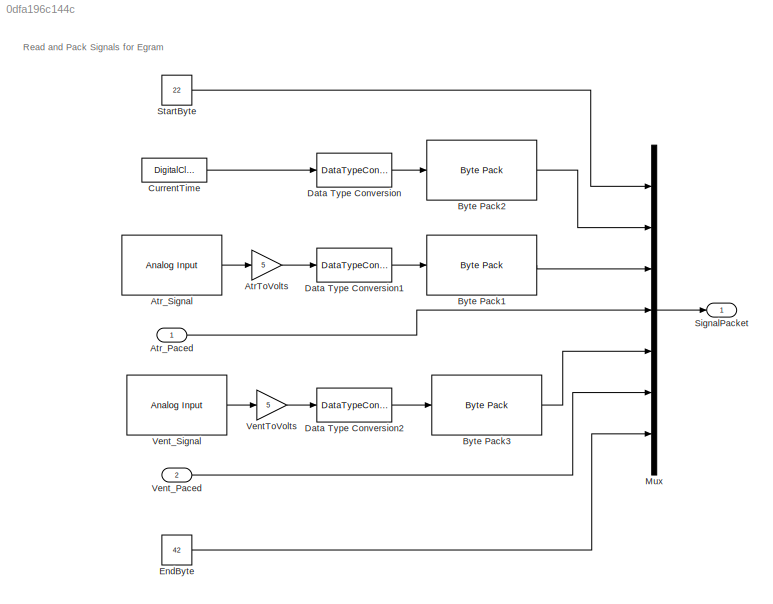
MODEL slx_0dfa196c144c
KIND model
CONFIG AbsTol = auto
CONFIG EnableMultiTasking = on
CONFIG FixedStep = 1e-3
CONFIG MaxStep = auto
CONFIG MinStep = auto
CONFIG RelTol = 1e-3
CONFIG SampleTimeConstraint = Unconstrained
CONFIG Solver = FixedStepAuto
CONFIG SolverName = FixedStepAuto
CONFIG StartTime = 0.0
CONFIG StopTime = 10.0
BLOCK [Gain] AtrToVolts
  Gain = 5
BLOCK [Inport] Atr_Paced
  OutDataTypeStr = uint8
BLOCK [Reference] Atr_Signal  REF=frdmk64flib/Analog Input
  Ports = [0, 1]
  SourceBlock = frdmk64flib/Analog Input
  SourceProductBaseCode = EC_FRDM_K64F
  SourceType = freedomk64f.AnalogInput
BLOCK [Reference] Byte Pack1  REF=etargetslib/Byte Pack
  Ports = [1, 1]
  SourceBlock = etargetslib/Byte Pack
  SourceProductBaseCode = ME
  SourceType = Byte pack
BLOCK [Reference] Byte Pack2  REF=etargetslib/Byte Pack
  Ports = [1, 1]
  SourceBlock = etargetslib/Byte Pack
  SourceProductBaseCode = ME
  SourceType = Byte pack
BLOCK [Reference] Byte Pack3  REF=etargetslib/Byte Pack
  Ports = [1, 1]
  SourceBlock = etargetslib/Byte Pack
  SourceProductBaseCode = ME
  SourceType = Byte pack
BLOCK [DigitalClock] CurrentTime
  SampleTime = 0.001
BLOCK [DataTypeConversion] Data Type Conversion
  OutDataTypeStr = single
  RndMeth = Floor
  SaturateOnIntegerOverflow = off
BLOCK [DataTypeConversion] Data Type Conversion1
  OutDataTypeStr = single
  RndMeth = Floor
  SaturateOnIntegerOverflow = off
BLOCK [DataTypeConversion] Data Type Conversion2
  OutDataTypeStr = single
  RndMeth = Floor
  SaturateOnIntegerOverflow = off
BLOCK [Constant] EndByte
  OutDataTypeStr = uint8
  Value = 42
BLOCK [Mux] Mux
  DisplayOption = bar
  Inputs = 7
  Ports = [7, 1]
BLOCK [Outport] SignalPacket
BLOCK [Constant] StartByte
  OutDataTypeStr = uint8
  Value = 22
BLOCK [Gain] VentToVolts
  Gain = 5
BLOCK [Inport] Vent_Paced
  OutDataTypeStr = uint8
  Port = 2
BLOCK [Reference] Vent_Signal  REF=frdmk64flib/Analog Input
  Ports = [0, 1]
  SourceBlock = frdmk64flib/Analog Input
  SourceProductBaseCode = EC_FRDM_K64F
  SourceType = freedomk64f.AnalogInput
ANNOTATION (root): Read and Pack Signals for Egram
LINE AtrToVolts:1 -> Data Type Conversion1:1
LINE Atr_Paced:1 -> Mux:4
LINE Atr_Signal:1 -> AtrToVolts:1
LINE Byte Pack1:1 -> Mux:3
LINE Byte Pack2:1 -> Mux:2
LINE Byte Pack3:1 -> Mux:5
LINE CurrentTime:1 -> Data Type Conversion:1
LINE Data Type Conversion1:1 -> Byte Pack1:1
LINE Data Type Conversion2:1 -> Byte Pack3:1
LINE Data Type Conversion:1 -> Byte Pack2:1
LINE EndByte:1 -> Mux:7
LINE Mux:1 -> SignalPacket:1
LINE StartByte:1 -> Mux:1
LINE VentToVolts:1 -> Data Type Conversion2:1
LINE Vent_Paced:1 -> Mux:6
LINE Vent_Signal:1 -> VentToVolts:1
